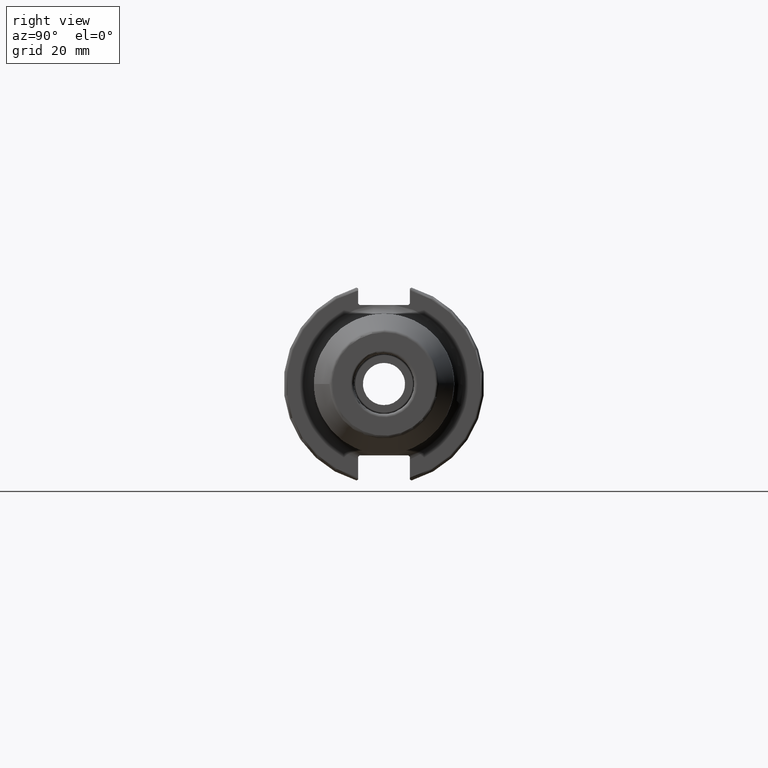
[diagram: clean part render]
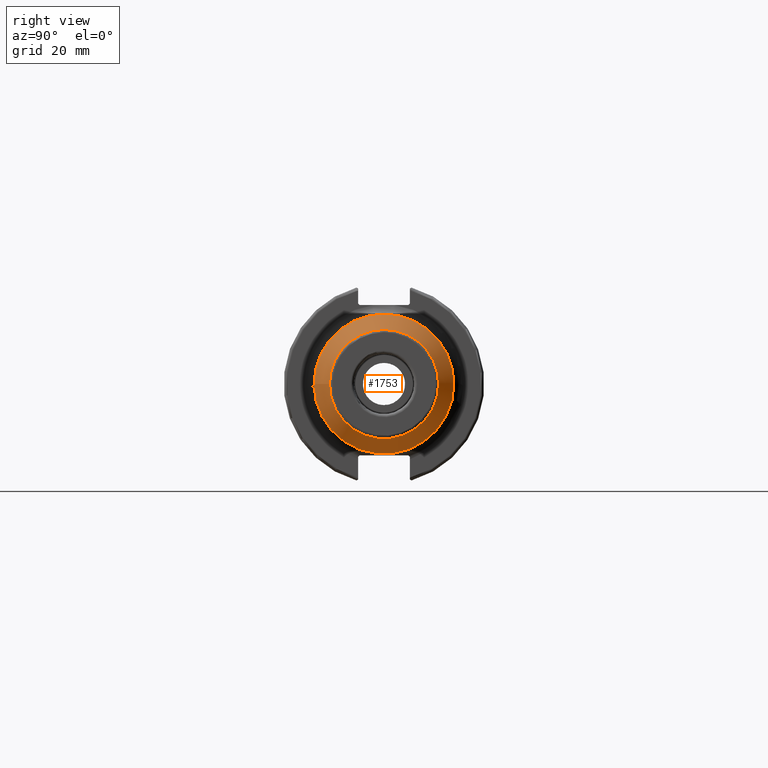
[diagram: same view with one face highlighted and labeled with its STEP entity id]
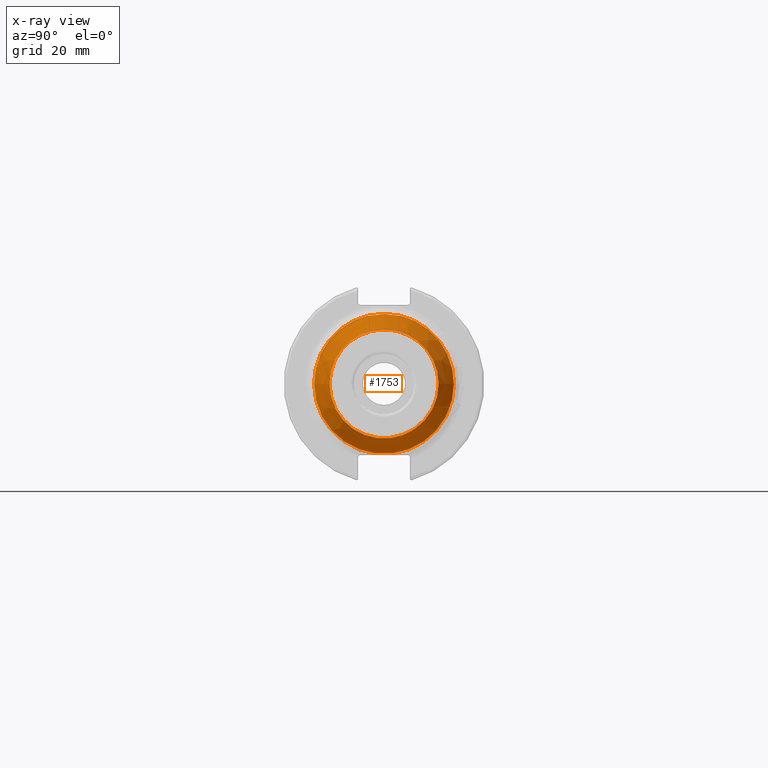
[diagram: x-ray of the same camera — body ghosted, the highlighted face saturated]
A machine part, right view. The second image highlights one B-rep face of the part: STEP entity #1753.
The next image is the same camera in x-ray: the body ghosted, the highlighted face saturated — about 0% of this face is hidden behind the body in this view.
In plain terms, the highlighted conical surface has half-angle 25 deg.
Its self-contained STEP definition (entity closure, byte-faithful):
#77=CONICAL_SURFACE('',#1884,19.6125,0.436332312998582);
#91=LINE('',#2805,#182);
#182=VECTOR('',#2143,19.6125);
#315=CIRCLE('',#1881,17.2692375262292);
#316=CIRCLE('',#1882,17.2692375262292);
#317=CIRCLE('',#1883,17.2692375262292);
#318=CIRCLE('',#1885,22.1313077870367);
#319=CIRCLE('',#1886,22.1313077870367);
#320=CIRCLE('',#1887,22.1313077870367);
#461=FACE_OUTER_BOUND('',#554,.T.);
#554=EDGE_LOOP('',(#1227,#1228,#1229,#1230,#1231,#1232,#1233,#1234));
#715=VERTEX_POINT('',#2796);
#716=VERTEX_POINT('',#2798);
#717=VERTEX_POINT('',#2800);
#718=VERTEX_POINT('',#2804);
#719=VERTEX_POINT('',#2806);
#720=VERTEX_POINT('',#2808);
#921=EDGE_CURVE('',#715,#716,#315,.T.);
#922=EDGE_CURVE('',#716,#717,#316,.T.);
#923=EDGE_CURVE('',#717,#715,#317,.T.);
#924=EDGE_CURVE('',#716,#718,#91,.T.);
#925=EDGE_CURVE('',#719,#718,#318,.T.);
#926=EDGE_CURVE('',#720,#719,#319,.T.);
#927=EDGE_CURVE('',#718,#720,#320,.T.);
#1227=ORIENTED_EDGE('',*,*,#923,.F.);
#1228=ORIENTED_EDGE('',*,*,#922,.F.);
#1229=ORIENTED_EDGE('',*,*,#924,.T.);
#1230=ORIENTED_EDGE('',*,*,#925,.F.);
#1231=ORIENTED_EDGE('',*,*,#926,.F.);
#1232=ORIENTED_EDGE('',*,*,#927,.F.);
#1233=ORIENTED_EDGE('',*,*,#924,.F.);
#1234=ORIENTED_EDGE('',*,*,#921,.F.);
#1753=ADVANCED_FACE('',(#461),#77,.T.);
#1881=AXIS2_PLACEMENT_3D('',#2799,#2135,#2136);
#1882=AXIS2_PLACEMENT_3D('',#2801,#2137,#2138);
#1883=AXIS2_PLACEMENT_3D('',#2802,#2139,#2140);
#1884=AXIS2_PLACEMENT_3D('',#2803,#2141,#2142);
#1885=AXIS2_PLACEMENT_3D('',#2807,#2144,#2145);
#1886=AXIS2_PLACEMENT_3D('',#2809,#2146,#2147);
#1887=AXIS2_PLACEMENT_3D('',#2810,#2148,#2149);
#2135=DIRECTION('center_axis',(1.,0.,0.));
#2136=DIRECTION('ref_axis',(0.,-1.,3.06161699786838E-17));
#2137=DIRECTION('center_axis',(1.,0.,0.));
#2138=DIRECTION('ref_axis',(0.,-1.,3.06161699786838E-17));
#2139=DIRECTION('center_axis',(1.,0.,0.));
#2140=DIRECTION('ref_axis',(0.,-1.,3.06161699786838E-17));
#2141=DIRECTION('center_axis',(-1.,0.,0.));
#2142=DIRECTION('ref_axis',(0.,1.,0.));
#2143=DIRECTION('',(-0.90630778703665,-0.422618261740699,-5.17558101501965E-17));
#2144=DIRECTION('center_axis',(-1.,0.,0.));
#2145=DIRECTION('ref_axis',(0.,-1.,3.06161699786838E-17));
#2146=DIRECTION('center_axis',(-1.,0.,0.));
#2147=DIRECTION('ref_axis',(0.,-1.,3.06161699786838E-17));
#2148=DIRECTION('center_axis',(-1.,0.,0.));
#2149=DIRECTION('ref_axis',(0.,-1.,3.06161699786838E-17));
#2796=CARTESIAN_POINT('',(145.422618261741,-2.11487164602119E-15,17.2692375262292));
#2798=CARTESIAN_POINT('',(145.422618261741,-17.2692375262292,-2.11487164602119E-15));
#2799=CARTESIAN_POINT('Origin',(145.422618261741,0.,-2.64358955752649E-15));
#2800=CARTESIAN_POINT('',(145.422618261741,17.2692375262292,-1.05743582301059E-15));
#2801=CARTESIAN_POINT('Origin',(145.422618261741,0.,-2.64358955752649E-15));
#2802=CARTESIAN_POINT('Origin',(145.422618261741,0.,-2.64358955752649E-15));
#2803=CARTESIAN_POINT('Origin',(140.397475670169,0.,0.));
#2804=CARTESIAN_POINT('',(134.995874939435,-22.1313077870367,-2.71030352423393E-15));
#2805=CARTESIAN_POINT('',(140.397475670169,-19.6125,-2.40183853482775E-15));
#2806=CARTESIAN_POINT('',(134.995874939435,22.1313077870367,-6.77575881058483E-15));
#2807=CARTESIAN_POINT('Origin',(134.995874939435,0.,-3.38787940529242E-15));
#2808=CARTESIAN_POINT('',(134.995874939435,-2.71030352423393E-15,22.1313077870367));
#2809=CARTESIAN_POINT('Origin',(134.995874939435,0.,-3.38787940529242E-15));
#2810=CARTESIAN_POINT('Origin',(134.995874939435,0.,-3.38787940529242E-15));